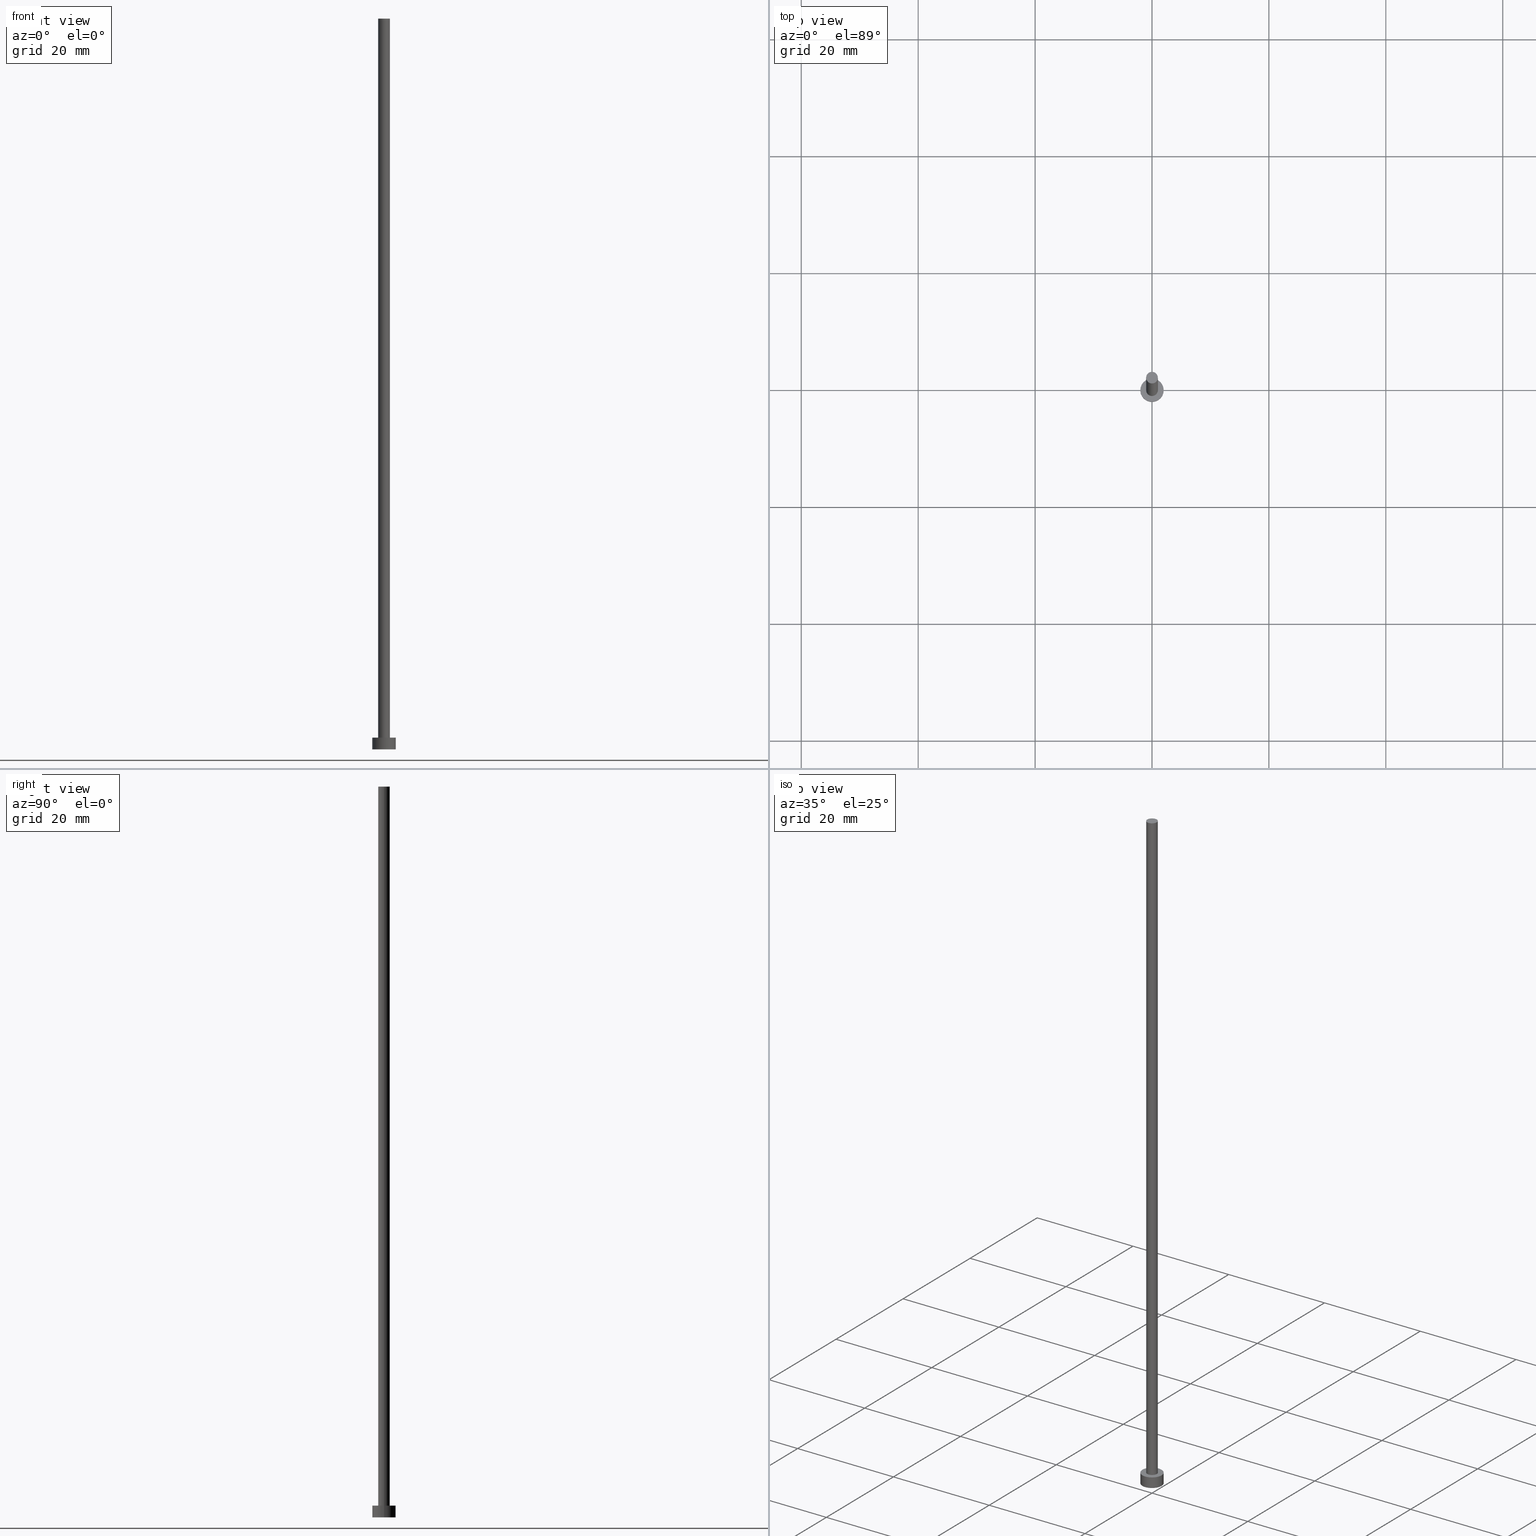
[diagram: canonical four-view strip — front | top / right | iso, engineering-drawing reading convention]
A machine part, canonical four-view strip (front | top / right | iso — engineering-drawing reading convention). The complete STEP part file that produces these views, byte-faithful:
ISO-10303-21;
HEADER;
FILE_DESCRIPTION (( 'STEP AP203' ),
    '1' );
FILE_NAME ('4fb4.STEP',
    '2023-02-13T14:56:04',
    ( '' ),
    ( '' ),
    'SwSTEP 2.0',
    'SolidWorks 2019',
    '' );
FILE_SCHEMA (( 'CONFIG_CONTROL_DESIGN' ));
ENDSEC;

DATA;
#1 = CARTESIAN_POINT ( 'NONE',  ( -1.000000000000000000, 0.000000000000000000, 125.0000000000000000 ) ) ;
#2 = AXIS2_PLACEMENT_3D ( 'NONE', #135, #117, #140 ) ;
#3 = EDGE_LOOP ( 'NONE', ( #14, #59, #87, #12 ) ) ;
#4 = DATE_AND_TIME ( #115, #19 ) ;
#5 = DIRECTION ( 'NONE',  ( -0.000000000000000000, -0.000000000000000000, -1.000000000000000000 ) ) ;
#6 = CC_DESIGN_PERSON_AND_ORGANIZATION_ASSIGNMENT ( #221, #53, ( #211 ) ) ;
#7 = CARTESIAN_POINT ( 'NONE',  ( 0.000000000000000000, 0.000000000000000000, 2.000000000000000000 ) ) ;
#8 = EDGE_CURVE ( 'NONE', #65, #101, #173, .T. ) ;
#9 = DIRECTION ( 'NONE',  ( 1.000000000000000000, 0.000000000000000000, 0.000000000000000000 ) ) ;
#10 = CARTESIAN_POINT ( 'NONE',  ( 2.000000000000000000, 2.449293598294706414E-16, 2.000000000000000000 ) ) ;
#11 = DIRECTION ( 'NONE',  ( 0.000000000000000000, 0.000000000000000000, 1.000000000000000000 ) ) ;
#12 = ORIENTED_EDGE ( 'NONE', *, *, #64, .F. ) ;
#13 = UNCERTAINTY_MEASURE_WITH_UNIT (LENGTH_MEASURE( 1.000000000000000082E-05 ), #179, 'distance_accuracy_value', 'NONE');
#14 = ORIENTED_EDGE ( 'NONE', *, *, #126, .F. ) ;
#15 = DIRECTION ( 'NONE',  ( 0.000000000000000000, 0.000000000000000000, 1.000000000000000000 ) ) ;
#16 = ORIENTED_EDGE ( 'NONE', *, *, #163, .T. ) ;
#17 = AXIS2_PLACEMENT_3D ( 'NONE', #148, #93, #168 ) ;
#18 = DIRECTION ( 'NONE',  ( 1.000000000000000000, 0.000000000000000000, 0.000000000000000000 ) ) ;
#19 = LOCAL_TIME ( 15, 56, 4.000000000000000000, #228 ) ;
#20 = FACE_OUTER_BOUND ( 'NONE', #161, .T. ) ;
#21 = CARTESIAN_POINT ( 'NONE',  ( 0.000000000000000000, 0.000000000000000000, 2.000000000000000000 ) ) ;
#22 = FACE_BOUND ( 'NONE', #34, .T. ) ;
#23 = VECTOR ( 'NONE', #98, 1000.000000000000000 ) ;
#24 = LOCAL_TIME ( 15, 56, 4.000000000000000000, #86 ) ;
#25 = CARTESIAN_POINT ( 'NONE',  ( 0.000000000000000000, 0.000000000000000000, 2.000000000000000000 ) ) ;
#26 = DIRECTION ( 'NONE',  ( 1.000000000000000000, 0.000000000000000000, -0.000000000000000000 ) ) ;
#27 = AXIS2_PLACEMENT_3D ( 'NONE', #116, #192, #9 ) ;
#28 = LINE ( 'NONE', #10, #23 ) ;
#29 = DIRECTION ( 'NONE',  ( -1.000000000000000000, 0.000000000000000000, 0.000000000000000000 ) ) ;
#30 = ADVANCED_FACE ( 'NONE', ( #181 ), #255, .T. ) ;
#31 = ORIENTED_EDGE ( 'NONE', *, *, #64, .T. ) ;
#32 = COORDINATED_UNIVERSAL_TIME_OFFSET ( 1, 0, .AHEAD. ) ;
#33 = CIRCLE ( 'NONE', #17, 2.000000000000000000 ) ;
#34 = EDGE_LOOP ( 'NONE', ( #194, #120 ) ) ;
#35 = CC_DESIGN_APPROVAL ( #174, ( #211 ) ) ;
#36 = PERSON_AND_ORGANIZATION ( #62, #89 ) ;
#37 = EDGE_CURVE ( 'NONE', #214, #106, #33, .T. ) ;
#38 = ADVANCED_FACE ( 'NONE', ( #22, #20 ), #72, .T. ) ;
#39 = CARTESIAN_POINT ( 'NONE',  ( 0.000000000000000000, 0.000000000000000000, 2.000000000000000000 ) ) ;
#40 = EDGE_LOOP ( 'NONE', ( #186, #216 ) ) ;
#41 = AXIS2_PLACEMENT_3D ( 'NONE', #178, #137, #57 ) ;
#42 = LOCAL_TIME ( 15, 56, 4.000000000000000000, #32 ) ;
#43 = DIRECTION ( 'NONE',  ( 1.000000000000000000, 0.000000000000000000, 0.000000000000000000 ) ) ;
#44 = ORIENTED_EDGE ( 'NONE', *, *, #200, .F. ) ;
#45 = VERTEX_POINT ( 'NONE', #125 ) ;
#46 = PERSON_AND_ORGANIZATION_ROLE ( 'design_owner' ) ;
#47 = CARTESIAN_POINT ( 'NONE',  ( 0.000000000000000000, 0.000000000000000000, 125.0000000000000000 ) ) ;
#48 = DATE_AND_TIME ( #144, #185 ) ;
#49 = DIRECTION ( 'NONE',  ( 1.000000000000000000, 0.000000000000000000, 0.000000000000000000 ) ) ;
#50 = EDGE_CURVE ( 'NONE', #45, #99, #122, .T. ) ;
#51 = CARTESIAN_POINT ( 'NONE',  ( -1.000000000000000000, 0.000000000000000000, 125.0000000000000000 ) ) ;
#52 = PERSON_AND_ORGANIZATION ( #62, #89 ) ;
#53 = PERSON_AND_ORGANIZATION_ROLE ( 'design_supplier' ) ;
#54 = CARTESIAN_POINT ( 'NONE',  ( 1.000000000000000000, 1.224646799147353207E-16, 2.000000000000000000 ) ) ;
#55 = DIRECTION ( 'NONE',  ( 0.000000000000000000, 0.000000000000000000, 1.000000000000000000 ) ) ;
#56 = FACE_OUTER_BOUND ( 'NONE', #141, .T. ) ;
#57 = DIRECTION ( 'NONE',  ( 1.000000000000000000, 0.000000000000000000, 0.000000000000000000 ) ) ;
#58 = EDGE_CURVE ( 'NONE', #254, #106, #113, .T. ) ;
#59 = ORIENTED_EDGE ( 'NONE', *, *, #196, .T. ) ;
#60 = AXIS2_PLACEMENT_3D ( 'NONE', #7, #11, #208 ) ;
#61 = CALENDAR_DATE ( 2023, 13, 2 ) ;
#62 = PERSON ( 'NEUR�EN�', 'NEUR�EN�', 'NEUR�EN�', ('NEUR�EN�'), ('NEUR�EN�'), ('NEUR�EN�') ) ;
#63 = CIRCLE ( 'NONE', #215, 1.000000000000000000 ) ;
#64 = EDGE_CURVE ( 'NONE', #65, #45, #189, .T. ) ;
#65 = VERTEX_POINT ( 'NONE', #51 ) ;
#66 = PLANE ( 'NONE',  #155 ) ;
#67 = VERTEX_POINT ( 'NONE', #129 ) ;
#68 = PRODUCT_DEFINITION_SHAPE ( 'NONE', 'NONE',  #171 ) ;
#69 = MECHANICAL_CONTEXT ( 'NONE', #78, 'mechanical' ) ;
#70 = VECTOR ( 'NONE', #206, 1000.000000000000000 ) ;
#71 = APPROVAL_ROLE ( '' ) ;
#72 = PLANE ( 'NONE',  #244 ) ;
#73 = DIRECTION ( 'NONE',  ( -1.000000000000000000, 0.000000000000000000, 0.000000000000000000 ) ) ;
#74 = ADVANCED_FACE ( 'NONE', ( #199 ), #204, .T. ) ;
#75 = CYLINDRICAL_SURFACE ( 'NONE', #164, 2.000000000000000000 ) ;
#76 = DATE_TIME_ROLE ( 'creation_date' ) ;
#77 = CARTESIAN_POINT ( 'NONE',  ( -2.000000000000000000, 0.000000000000000000, 0.000000000000000000 ) ) ;
#78 = APPLICATION_CONTEXT ( 'configuration controlled 3d designs of mechanical parts and assemblies' ) ;
#79 = PERSON_AND_ORGANIZATION ( #62, #89 ) ;
#80 = CARTESIAN_POINT ( 'NONE',  ( 2.000000000000000000, 2.449293598294706414E-16, 0.000000000000000000 ) ) ;
#81 = CC_DESIGN_PERSON_AND_ORGANIZATION_ASSIGNMENT ( #108, #167, ( #171 ) ) ;
#82 = EDGE_LOOP ( 'NONE', ( #109, #158, #84, #160 ) ) ;
#83 = ADVANCED_FACE ( 'NONE', ( #238 ), #66, .F. ) ;
#84 = ORIENTED_EDGE ( 'NONE', *, *, #37, .T. ) ;
#85 = DESIGN_CONTEXT ( 'detailed design', #104, 'design' ) ;
#86 = COORDINATED_UNIVERSAL_TIME_OFFSET ( 1, 0, .AHEAD. ) ;
#87 = ORIENTED_EDGE ( 'NONE', *, *, #241, .T. ) ;
#88 = DATE_AND_TIME ( #252, #222 ) ;
#89 = ORGANIZATION ( 'NEUR�EN�', 'NEUR�EN�', '' ) ;
#90 = VECTOR ( 'NONE', #188, 1000.000000000000000 ) ;
#91 = CC_DESIGN_PERSON_AND_ORGANIZATION_ASSIGNMENT ( #143, #46, ( #187 ) ) ;
#92 = EDGE_LOOP ( 'NONE', ( #233, #165, #31, #237 ) ) ;
#93 = DIRECTION ( 'NONE',  ( 0.000000000000000000, 0.000000000000000000, 1.000000000000000000 ) ) ;
#94 = DIRECTION ( 'NONE',  ( -1.000000000000000000, 0.000000000000000000, 0.000000000000000000 ) ) ;
#95 = EDGE_CURVE ( 'NONE', #106, #214, #223, .T. ) ;
#96 = PLANE ( 'NONE',  #197 ) ;
#97 = CARTESIAN_POINT ( 'NONE',  ( 1.000000000000000000, 1.224646799147353207E-16, 125.0000000000000000 ) ) ;
#98 = DIRECTION ( 'NONE',  ( -0.000000000000000000, -0.000000000000000000, -1.000000000000000000 ) ) ;
#99 = VERTEX_POINT ( 'NONE', #54 ) ;
#100 = DIRECTION ( 'NONE',  ( 0.000000000000000000, 0.000000000000000000, 1.000000000000000000 ) ) ;
#101 = VERTEX_POINT ( 'NONE', #97 ) ;
#102 = APPROVAL_DATE_TIME ( #136, #121 ) ;
#103 = CARTESIAN_POINT ( 'NONE',  ( -2.000000000000000000, 0.000000000000000000, 2.000000000000000000 ) ) ;
#104 = APPLICATION_CONTEXT ( 'configuration controlled 3d designs of mechanical parts and assemblies' ) ;
#105 = APPLICATION_PROTOCOL_DEFINITION ( 'international standard', 'config_control_design', 1994, #78 ) ;
#106 = VERTEX_POINT ( 'NONE', #77 ) ;
#107 = CLOSED_SHELL ( 'NONE', ( #30, #156, #74, #38, #83, #227, #170 ) ) ;
#108 = PERSON_AND_ORGANIZATION ( #62, #89 ) ;
#109 = ORIENTED_EDGE ( 'NONE', *, *, #182, .F. ) ;
#110 = DIRECTION ( 'NONE',  ( 1.000000000000000000, 0.000000000000000000, -0.000000000000000000 ) ) ;
#111 = APPROVAL_STATUS ( 'not_yet_approved' ) ;
#112 = DIRECTION ( 'NONE',  ( 0.000000000000000000, 0.000000000000000000, 1.000000000000000000 ) ) ;
#113 = LINE ( 'NONE', #203, #90 ) ;
#114 = SECURITY_CLASSIFICATION ( '', '', #150 ) ;
#115 = CALENDAR_DATE ( 2023, 13, 2 ) ;
#116 = CARTESIAN_POINT ( 'NONE',  ( 0.000000000000000000, 0.000000000000000000, 2.000000000000000000 ) ) ;
#117 = DIRECTION ( 'NONE',  ( -0.000000000000000000, -0.000000000000000000, -1.000000000000000000 ) ) ;
#118 = DIRECTION ( 'NONE',  ( 1.000000000000000000, 0.000000000000000000, -0.000000000000000000 ) ) ;
#119 = APPROVAL_ROLE ( '' ) ;
#120 = ORIENTED_EDGE ( 'NONE', *, *, #241, .F. ) ;
#121 = APPROVAL ( #184, 'NEUR�EN�' ) ;
#122 = CIRCLE ( 'NONE', #193, 1.000000000000000000 ) ;
#123 = ORIENTED_EDGE ( 'NONE', *, *, #95, .T. ) ;
#124 =( NAMED_UNIT ( * ) PLANE_ANGLE_UNIT ( ) SI_UNIT ( $, .RADIAN. ) );
#125 = CARTESIAN_POINT ( 'NONE',  ( -1.000000000000000000, 0.000000000000000000, 2.000000000000000000 ) ) ;
#126 = EDGE_CURVE ( 'NONE', #101, #65, #63, .T. ) ;
#127 = CARTESIAN_POINT ( 'NONE',  ( 0.000000000000000000, 0.000000000000000000, 2.000000000000000000 ) ) ;
#128 = PERSON_AND_ORGANIZATION ( #62, #89 ) ;
#129 = CARTESIAN_POINT ( 'NONE',  ( 2.000000000000000000, 2.449293598294706414E-16, 2.000000000000000000 ) ) ;
#130 = AXIS2_PLACEMENT_3D ( 'NONE', #39, #100, #43 ) ;
#131 = PERSON_AND_ORGANIZATION_ROLE ( 'classification_officer' ) ;
#132 = DIRECTION ( 'NONE',  ( -0.000000000000000000, -0.000000000000000000, -1.000000000000000000 ) ) ;
#133 = CARTESIAN_POINT ( 'NONE',  ( 1.000000000000000000, 1.224646799147353207E-16, 125.0000000000000000 ) ) ;
#134 = APPROVAL_DATE_TIME ( #4, #174 ) ;
#135 = CARTESIAN_POINT ( 'NONE',  ( 0.000000000000000000, 0.000000000000000000, 125.0000000000000000 ) ) ;
#136 = DATE_AND_TIME ( #139, #24 ) ;
#137 = DIRECTION ( 'NONE',  ( 0.000000000000000000, 0.000000000000000000, 1.000000000000000000 ) ) ;
#138 = AXIS2_PLACEMENT_3D ( 'NONE', #47, #202, #73 ) ;
#139 = CALENDAR_DATE ( 2023, 13, 2 ) ;
#140 = DIRECTION ( 'NONE',  ( -1.000000000000000000, 0.000000000000000000, 0.000000000000000000 ) ) ;
#141 = EDGE_LOOP ( 'NONE', ( #219, #180 ) ) ;
#142 = AXIS2_PLACEMENT_3D ( 'NONE', #25, #5, #94 ) ;
#143 = PERSON_AND_ORGANIZATION ( #62, #89 ) ;
#144 = CALENDAR_DATE ( 2023, 13, 2 ) ;
#145 = CIRCLE ( 'NONE', #27, 2.000000000000000000 ) ;
#146 = COORDINATED_UNIVERSAL_TIME_OFFSET ( 1, 0, .AHEAD. ) ;
#147 = ORIENTED_EDGE ( 'NONE', *, *, #58, .T. ) ;
#148 = CARTESIAN_POINT ( 'NONE',  ( 0.000000000000000000, 0.000000000000000000, 0.000000000000000000 ) ) ;
#149 = ORIENTED_EDGE ( 'NONE', *, *, #182, .T. ) ;
#150 = SECURITY_CLASSIFICATION_LEVEL ( 'unclassified' ) ;
#151 = CARTESIAN_POINT ( 'NONE',  ( 0.000000000000000000, 0.000000000000000000, 2.000000000000000000 ) ) ;
#152 = PERSON_AND_ORGANIZATION ( #62, #89 ) ;
#153 = LINE ( 'NONE', #133, #70 ) ;
#154 = FACE_OUTER_BOUND ( 'NONE', #92, .T. ) ;
#155 = AXIS2_PLACEMENT_3D ( 'NONE', #247, #175, #118 ) ;
#156 = ADVANCED_FACE ( 'NONE', ( #249 ), #75, .T. ) ;
#157 = DATE_TIME_ROLE ( 'classification_date' ) ;
#158 = ORIENTED_EDGE ( 'NONE', *, *, #200, .T. ) ;
#159 = CC_DESIGN_PERSON_AND_ORGANIZATION_ASSIGNMENT ( #52, #131, ( #114 ) ) ;
#160 = ORIENTED_EDGE ( 'NONE', *, *, #58, .F. ) ;
#161 = EDGE_LOOP ( 'NONE', ( #16, #149 ) ) ;
#162 = AXIS2_PLACEMENT_3D ( 'NONE', #198, #15, #18 ) ;
#163 = EDGE_CURVE ( 'NONE', #254, #67, #245, .T. ) ;
#164 = AXIS2_PLACEMENT_3D ( 'NONE', #151, #132, #29 ) ;
#165 = ORIENTED_EDGE ( 'NONE', *, *, #8, .F. ) ;
#166 = CC_DESIGN_DATE_AND_TIME_ASSIGNMENT ( #213, #157, ( #114 ) ) ;
#167 = PERSON_AND_ORGANIZATION_ROLE ( 'creator' ) ;
#168 = DIRECTION ( 'NONE',  ( 1.000000000000000000, 0.000000000000000000, 0.000000000000000000 ) ) ;
#169 = VECTOR ( 'NONE', #220, 1000.000000000000000 ) ;
#170 = ADVANCED_FACE ( 'NONE', ( #56 ), #96, .T. ) ;
#171 = PRODUCT_DEFINITION ( 'NEZN�M�', '', #211, #85 ) ;
#172 = CARTESIAN_POINT ( 'NONE',  ( 0.000000000000000000, 0.000000000000000000, 125.0000000000000000 ) ) ;
#173 = CIRCLE ( 'NONE', #162, 1.000000000000000000 ) ;
#174 = APPROVAL ( #176, 'NEUR�EN�' ) ;
#175 = DIRECTION ( 'NONE',  ( 0.000000000000000000, 0.000000000000000000, 1.000000000000000000 ) ) ;
#176 = APPROVAL_STATUS ( 'not_yet_approved' ) ;
#177 =( GEOMETRIC_REPRESENTATION_CONTEXT ( 3 ) GLOBAL_UNCERTAINTY_ASSIGNED_CONTEXT ( ( #13 ) ) GLOBAL_UNIT_ASSIGNED_CONTEXT ( ( #179, #124, #209 ) ) REPRESENTATION_CONTEXT ( 'NONE', 'WORKASPACE' ) );
#178 = CARTESIAN_POINT ( 'NONE',  ( 0.000000000000000000, 0.000000000000000000, 0.000000000000000000 ) ) ;
#179 =( LENGTH_UNIT ( ) NAMED_UNIT ( * ) SI_UNIT ( .MILLI., .METRE. ) );
#180 = ORIENTED_EDGE ( 'NONE', *, *, #126, .T. ) ;
#181 = FACE_OUTER_BOUND ( 'NONE', #3, .T. ) ;
#182 = EDGE_CURVE ( 'NONE', #67, #254, #145, .T. ) ;
#183 = APPROVAL_PERSON_ORGANIZATION ( #36, #121, #119 ) ;
#184 = APPROVAL_STATUS ( 'not_yet_approved' ) ;
#185 = LOCAL_TIME ( 15, 56, 4.000000000000000000, #239 ) ;
#186 = ORIENTED_EDGE ( 'NONE', *, *, #95, .F. ) ;
#187 = PRODUCT ( '4fb4', '4fb4', '', ( #69 ) ) ;
#188 = DIRECTION ( 'NONE',  ( -0.000000000000000000, -0.000000000000000000, -1.000000000000000000 ) ) ;
#189 = LINE ( 'NONE', #1, #169 ) ;
#190 = AXIS2_PLACEMENT_3D ( 'NONE', #242, #226, #246 ) ;
#191 = DIRECTION ( 'NONE',  ( 1.000000000000000000, 0.000000000000000000, 0.000000000000000000 ) ) ;
#192 = DIRECTION ( 'NONE',  ( 0.000000000000000000, 0.000000000000000000, 1.000000000000000000 ) ) ;
#193 = AXIS2_PLACEMENT_3D ( 'NONE', #21, #218, #49 ) ;
#194 = ORIENTED_EDGE ( 'NONE', *, *, #50, .F. ) ;
#195 = SHAPE_DEFINITION_REPRESENTATION ( #68, #250 ) ;
#196 = EDGE_CURVE ( 'NONE', #101, #99, #153, .T. ) ;
#197 = AXIS2_PLACEMENT_3D ( 'NONE', #172, #205, #26 ) ;
#198 = CARTESIAN_POINT ( 'NONE',  ( 0.000000000000000000, 0.000000000000000000, 125.0000000000000000 ) ) ;
#199 = FACE_OUTER_BOUND ( 'NONE', #210, .T. ) ;
#200 = EDGE_CURVE ( 'NONE', #67, #214, #28, .T. ) ;
#201 = APPLICATION_PROTOCOL_DEFINITION ( 'international standard', 'config_control_design', 1994, #104 ) ;
#202 = DIRECTION ( 'NONE',  ( -0.000000000000000000, -0.000000000000000000, -1.000000000000000000 ) ) ;
#203 = CARTESIAN_POINT ( 'NONE',  ( -2.000000000000000000, 0.000000000000000000, 2.000000000000000000 ) ) ;
#204 = CYLINDRICAL_SURFACE ( 'NONE', #142, 2.000000000000000000 ) ;
#205 = DIRECTION ( 'NONE',  ( 0.000000000000000000, 0.000000000000000000, 1.000000000000000000 ) ) ;
#206 = DIRECTION ( 'NONE',  ( -0.000000000000000000, -0.000000000000000000, -1.000000000000000000 ) ) ;
#207 = CIRCLE ( 'NONE', #130, 1.000000000000000000 ) ;
#208 = DIRECTION ( 'NONE',  ( 1.000000000000000000, 0.000000000000000000, 0.000000000000000000 ) ) ;
#209 =( NAMED_UNIT ( * ) SI_UNIT ( $, .STERADIAN. ) SOLID_ANGLE_UNIT ( ) );
#210 = EDGE_LOOP ( 'NONE', ( #44, #235, #147, #123 ) ) ;
#211 = PRODUCT_DEFINITION_FORMATION_WITH_SPECIFIED_SOURCE ( 'LIBOVOLN�', '', #187, .NOT_KNOWN. ) ;
#212 = CC_DESIGN_DATE_AND_TIME_ASSIGNMENT ( #48, #76, ( #171 ) ) ;
#213 = DATE_AND_TIME ( #61, #42 ) ;
#214 = VERTEX_POINT ( 'NONE', #80 ) ;
#215 = AXIS2_PLACEMENT_3D ( 'NONE', #231, #55, #191 ) ;
#216 = ORIENTED_EDGE ( 'NONE', *, *, #37, .F. ) ;
#217 = APPROVAL_DATE_TIME ( #88, #243 ) ;
#218 = DIRECTION ( 'NONE',  ( 0.000000000000000000, 0.000000000000000000, 1.000000000000000000 ) ) ;
#219 = ORIENTED_EDGE ( 'NONE', *, *, #8, .T. ) ;
#220 = DIRECTION ( 'NONE',  ( -0.000000000000000000, -0.000000000000000000, -1.000000000000000000 ) ) ;
#221 = PERSON_AND_ORGANIZATION ( #62, #89 ) ;
#222 = LOCAL_TIME ( 15, 56, 4.000000000000000000, #146 ) ;
#223 = CIRCLE ( 'NONE', #190, 2.000000000000000000 ) ;
#224 = APPROVAL_PERSON_ORGANIZATION ( #79, #174, #248 ) ;
#225 = PERSON_AND_ORGANIZATION_ROLE ( 'creator' ) ;
#226 = DIRECTION ( 'NONE',  ( 0.000000000000000000, 0.000000000000000000, 1.000000000000000000 ) ) ;
#227 = ADVANCED_FACE ( 'NONE', ( #154 ), #229, .T. ) ;
#228 = COORDINATED_UNIVERSAL_TIME_OFFSET ( 1, 0, .AHEAD. ) ;
#229 = CYLINDRICAL_SURFACE ( 'NONE', #2, 1.000000000000000000 ) ;
#230 = CC_DESIGN_APPROVAL ( #121, ( #114 ) ) ;
#231 = CARTESIAN_POINT ( 'NONE',  ( 0.000000000000000000, 0.000000000000000000, 125.0000000000000000 ) ) ;
#232 = PRODUCT_RELATED_PRODUCT_CATEGORY ( 'detail', '', ( #187 ) ) ;
#233 = ORIENTED_EDGE ( 'NONE', *, *, #196, .F. ) ;
#234 = CC_DESIGN_SECURITY_CLASSIFICATION ( #114, ( #211 ) ) ;
#235 = ORIENTED_EDGE ( 'NONE', *, *, #163, .F. ) ;
#236 = CC_DESIGN_PERSON_AND_ORGANIZATION_ASSIGNMENT ( #152, #225, ( #211 ) ) ;
#237 = ORIENTED_EDGE ( 'NONE', *, *, #50, .T. ) ;
#238 = FACE_OUTER_BOUND ( 'NONE', #40, .T. ) ;
#239 = COORDINATED_UNIVERSAL_TIME_OFFSET ( 1, 0, .AHEAD. ) ;
#240 = APPROVAL_PERSON_ORGANIZATION ( #128, #243, #71 ) ;
#241 = EDGE_CURVE ( 'NONE', #99, #45, #207, .T. ) ;
#242 = CARTESIAN_POINT ( 'NONE',  ( 0.000000000000000000, 0.000000000000000000, 0.000000000000000000 ) ) ;
#243 = APPROVAL ( #111, 'NEUR�EN�' ) ;
#244 = AXIS2_PLACEMENT_3D ( 'NONE', #127, #112, #110 ) ;
#245 = CIRCLE ( 'NONE', #60, 2.000000000000000000 ) ;
#246 = DIRECTION ( 'NONE',  ( 1.000000000000000000, 0.000000000000000000, 0.000000000000000000 ) ) ;
#247 = CARTESIAN_POINT ( 'NONE',  ( 0.000000000000000000, 0.000000000000000000, 0.000000000000000000 ) ) ;
#248 = APPROVAL_ROLE ( '' ) ;
#249 = FACE_OUTER_BOUND ( 'NONE', #82, .T. ) ;
#250 = ADVANCED_BREP_SHAPE_REPRESENTATION ( '4fb4', ( #251, #41 ), #177 ) ;
#251 = MANIFOLD_SOLID_BREP ( 'P�idat vysunut�m3', #107 ) ;
#252 = CALENDAR_DATE ( 2023, 13, 2 ) ;
#253 = CC_DESIGN_APPROVAL ( #243, ( #171 ) ) ;
#254 = VERTEX_POINT ( 'NONE', #103 ) ;
#255 = CYLINDRICAL_SURFACE ( 'NONE', #138, 1.000000000000000000 ) ;
ENDSEC;
END-ISO-10303-21;
